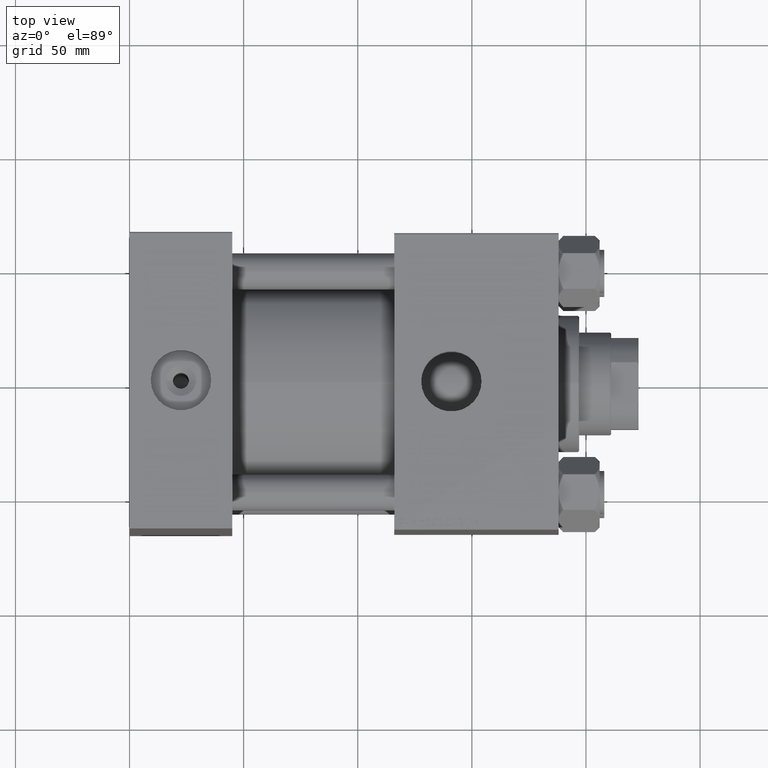
[diagram: clean part render]
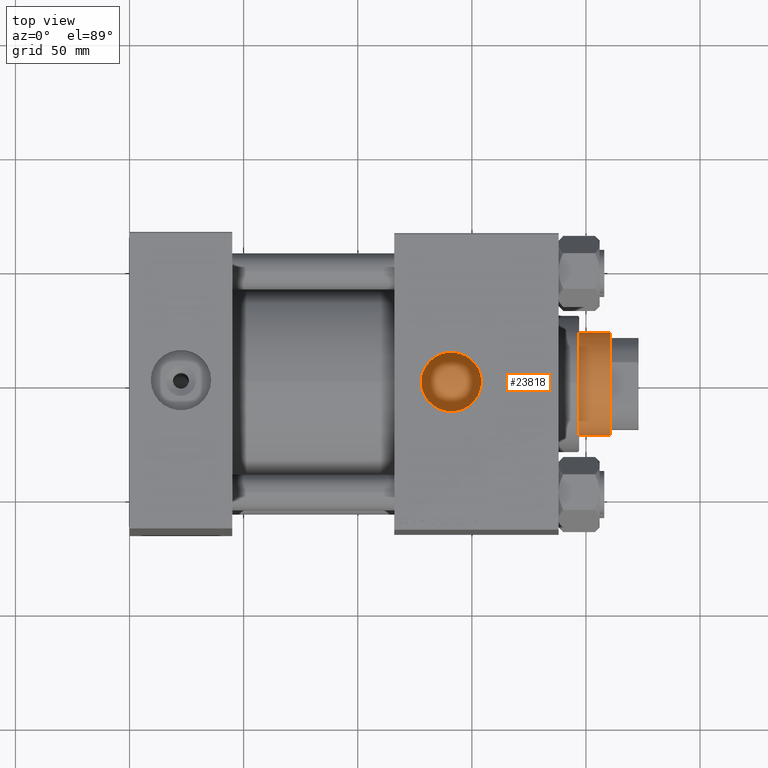
[diagram: same view with one face highlighted and labeled with its STEP entity id]
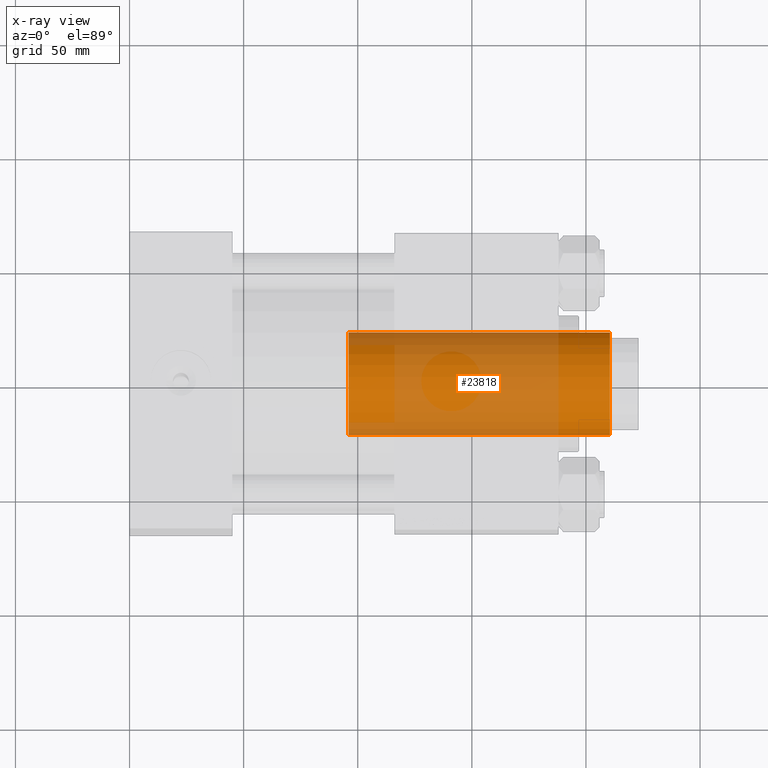
[diagram: x-ray of the same camera — body ghosted, the highlighted face saturated]
A machine part, top view. The second image highlights one B-rep face of the part: STEP entity #23818.
The next image is the same camera in x-ray: the body ghosted, the highlighted face saturated — about 57% of this face is hidden behind the body in this view.
In plain terms, the highlighted cylindrical surface (partial cylindrical patch) has radius 22.5 mm, axis along (-1, 0, 0).
Its self-contained STEP definition (entity closure, byte-faithful):
#2578 = EDGE_CURVE ( 'NONE', #10355, #41135, #7453, .T. ) ;
#2887 = CARTESIAN_POINT ( 'NONE',  ( -22.50000000000000355, 0.000000000000000000, 165.4999999999999716 ) ) ;
#3008 = VERTEX_POINT ( 'NONE', #2887 ) ;
#3936 = DIRECTION ( 'NONE',  ( -0.000000000000000000, -0.000000000000000000, -1.000000000000000000 ) ) ;
#4674 = AXIS2_PLACEMENT_3D ( 'NONE', #48703, #10686, #45631 ) ;
#5646 = FACE_OUTER_BOUND ( 'NONE', #13923, .T. ) ;
#6457 = EDGE_CURVE ( 'NONE', #20170, #41135, #10595, .T. ) ;
#7453 = CIRCLE ( 'NONE', #35962, 22.50000000000000355 ) ;
#10107 = ORIENTED_EDGE ( 'NONE', *, *, #2578, .T. ) ;
#10355 = VERTEX_POINT ( 'NONE', #23718 ) ;
#10595 = LINE ( 'NONE', #19246, #36907 ) ;
#10686 = DIRECTION ( 'NONE',  ( 0.000000000000000000, 0.000000000000000000, -1.000000000000000000 ) ) ;
#13923 = EDGE_LOOP ( 'NONE', ( #28273, #41588, #49588, #10107 ) ) ;
#15579 = DIRECTION ( 'NONE',  ( 1.000000000000000000, 0.000000000000000000, 0.000000000000000000 ) ) ;
#17087 = LINE ( 'NONE', #20903, #21325 ) ;
#19246 = CARTESIAN_POINT ( 'NONE',  ( 22.50000000000000355, 2.755455298081545172E-15, 166.0000000000000000 ) ) ;
#20170 = VERTEX_POINT ( 'NONE', #22194 ) ;
#20903 = CARTESIAN_POINT ( 'NONE',  ( -22.50000000000000355, 0.000000000000000000, 166.0000000000000000 ) ) ;
#21325 = VECTOR ( 'NONE', #28803, 1000.000000000000000 ) ;
#21432 = CYLINDRICAL_SURFACE ( 'NONE', #47206, 22.50000000000000355 ) ;
#22194 = CARTESIAN_POINT ( 'NONE',  ( 22.50000000000000355, 2.755455298081545172E-15, 165.4999999999999716 ) ) ;
#23718 = CARTESIAN_POINT ( 'NONE',  ( -22.50000000000000355, 0.000000000000000000, 51.00000000000000000 ) ) ;
#23818 = ADVANCED_FACE ( 'NONE', ( #5646 ), #21432, .T. ) ;
#28273 = ORIENTED_EDGE ( 'NONE', *, *, #6457, .F. ) ;
#28803 = DIRECTION ( 'NONE',  ( -0.000000000000000000, -0.000000000000000000, -1.000000000000000000 ) ) ;
#29343 = CARTESIAN_POINT ( 'NONE',  ( 0.000000000000000000, 0.000000000000000000, 166.0000000000000000 ) ) ;
#29770 = EDGE_CURVE ( 'NONE', #3008, #10355, #17087, .T. ) ;
#30113 = CARTESIAN_POINT ( 'NONE',  ( 0.000000000000000000, 0.000000000000000000, 51.00000000000000000 ) ) ;
#35962 = AXIS2_PLACEMENT_3D ( 'NONE', #30113, #38287, #15579 ) ;
#36907 = VECTOR ( 'NONE', #3936, 1000.000000000000000 ) ;
#38287 = DIRECTION ( 'NONE',  ( 0.000000000000000000, 0.000000000000000000, 1.000000000000000000 ) ) ;
#38701 = CARTESIAN_POINT ( 'NONE',  ( 22.50000000000000355, 2.755455298081545172E-15, 51.00000000000000000 ) ) ;
#41135 = VERTEX_POINT ( 'NONE', #38701 ) ;
#41353 = DIRECTION ( 'NONE',  ( -1.000000000000000000, 0.000000000000000000, 0.000000000000000000 ) ) ;
#41588 = ORIENTED_EDGE ( 'NONE', *, *, #46337, .T. ) ;
#44922 = DIRECTION ( 'NONE',  ( -0.000000000000000000, -0.000000000000000000, -1.000000000000000000 ) ) ;
#45631 = DIRECTION ( 'NONE',  ( 1.000000000000000000, 0.000000000000000000, 0.000000000000000000 ) ) ;
#46337 = EDGE_CURVE ( 'NONE', #20170, #3008, #49480, .T. ) ;
#47206 = AXIS2_PLACEMENT_3D ( 'NONE', #29343, #44922, #41353 ) ;
#48703 = CARTESIAN_POINT ( 'NONE',  ( 0.000000000000000000, 0.000000000000000000, 165.4999999999999716 ) ) ;
#49480 = CIRCLE ( 'NONE', #4674, 22.50000000000000355 ) ;
#49588 = ORIENTED_EDGE ( 'NONE', *, *, #29770, .T. ) ;